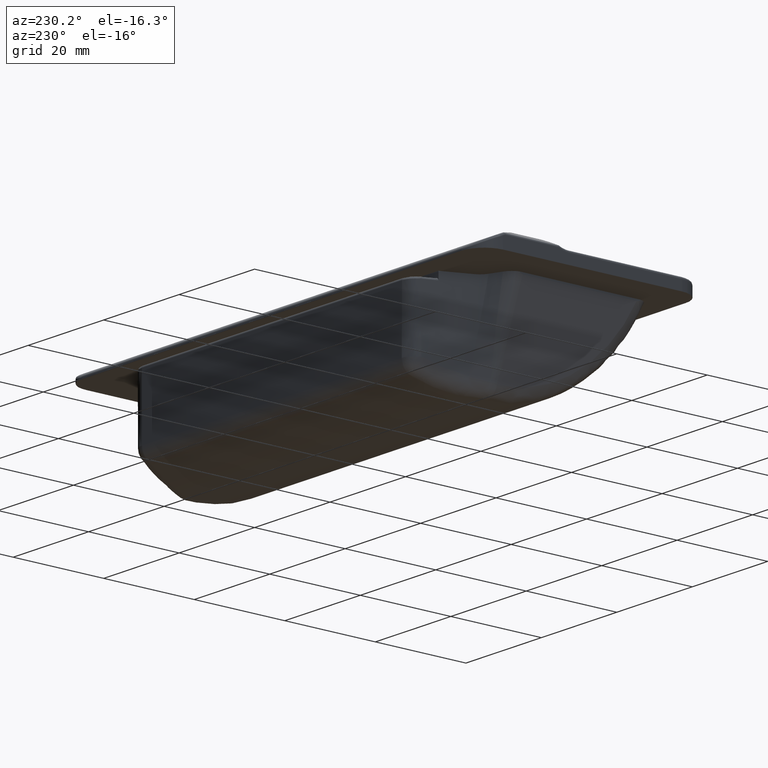
[diagram: clean part render]
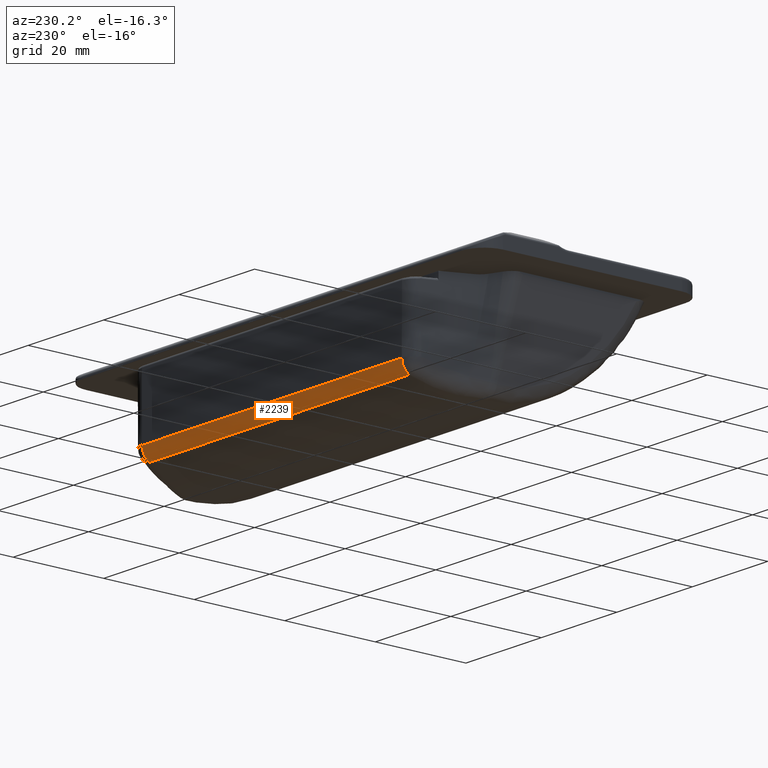
[diagram: same view with one face highlighted and labeled with its STEP entity id]
A machine part, auxiliary view. The second image highlights one B-rep face of the part: STEP entity #2239.
In plain terms, the highlighted cylindrical surface (edge-blend (fillet) strip) has radius 3 mm, axis along (-1, 0, 0).
Its self-contained STEP definition (entity closure, byte-faithful):
#172=LINE('',#4808,#270);
#173=LINE('',#4809,#271);
#270=VECTOR('',#2912,68.8215597778781);
#271=VECTOR('',#2913,68.821559777871);
#311=CYLINDRICAL_SURFACE('',#2449,3.);
#420=FACE_OUTER_BOUND('',#564,.T.);
#564=EDGE_LOOP('',(#1877,#1878,#1879,#1880));
#693=CIRCLE('',#2444,3.);
#695=CIRCLE('',#2447,3.);
#1017=VERTEX_POINT('',#4767);
#1018=VERTEX_POINT('',#4769);
#1019=VERTEX_POINT('',#4801);
#1021=VERTEX_POINT('',#4804);
#1325=EDGE_CURVE('',#1017,#1018,#693,.F.);
#1329=EDGE_CURVE('',#1021,#1019,#695,.F.);
#1331=EDGE_CURVE('',#1018,#1021,#172,.T.);
#1332=EDGE_CURVE('',#1019,#1017,#173,.T.);
#1877=ORIENTED_EDGE('',*,*,#1325,.T.);
#1878=ORIENTED_EDGE('',*,*,#1331,.T.);
#1879=ORIENTED_EDGE('',*,*,#1329,.T.);
#1880=ORIENTED_EDGE('',*,*,#1332,.T.);
#2239=ADVANCED_FACE('',(#420),#311,.T.);
#2444=AXIS2_PLACEMENT_3D('',#4771,#2900,#2901);
#2447=AXIS2_PLACEMENT_3D('',#4805,#2906,#2907);
#2449=AXIS2_PLACEMENT_3D('',#4807,#2910,#2911);
#2900=DIRECTION('center_axis',(-1.,-1.58095758706622E-12,-7.86420867450442E-13));
#2901=DIRECTION('ref_axis',(0.,0.445374148783226,-0.895344552446497));
#2906=DIRECTION('center_axis',(1.,1.30814367834551E-27,-1.76740661470317E-12));
#2907=DIRECTION('ref_axis',(0.,1.,7.40148683083438E-16));
#2910=DIRECTION('center_axis',(-1.,0.,0.));
#2911=DIRECTION('ref_axis',(0.,0.850110036637383,-0.526605094552253));
#2912=DIRECTION('',(1.,0.,0.));
#2913=DIRECTION('',(-1.,0.,0.));
#4767=CARTESIAN_POINT('',(-34.4107798889355,47.8361224463493,-18.0926341944299));
#4769=CARTESIAN_POINT('',(-34.4107798889402,49.4999999999997,-15.4066005370904));
#4771=CARTESIAN_POINT('Origin',(-34.4107798889355,46.4999999999997,-15.4066005370904));
#4801=CARTESIAN_POINT('',(34.4107798889355,47.8361224463493,-18.0926341944299));
#4804=CARTESIAN_POINT('',(34.4107798889379,49.4999999999997,-15.4066005364844));
#4805=CARTESIAN_POINT('Origin',(34.4107798889402,46.4999999999997,-15.4066005370904));
#4807=CARTESIAN_POINT('Origin',(0.,46.4999999999997,-15.4066005370904));
#4808=CARTESIAN_POINT('',(0.,49.4999999999997,-15.4066005370904));
#4809=CARTESIAN_POINT('',(0.,47.8361224463493,-18.0926341944299));